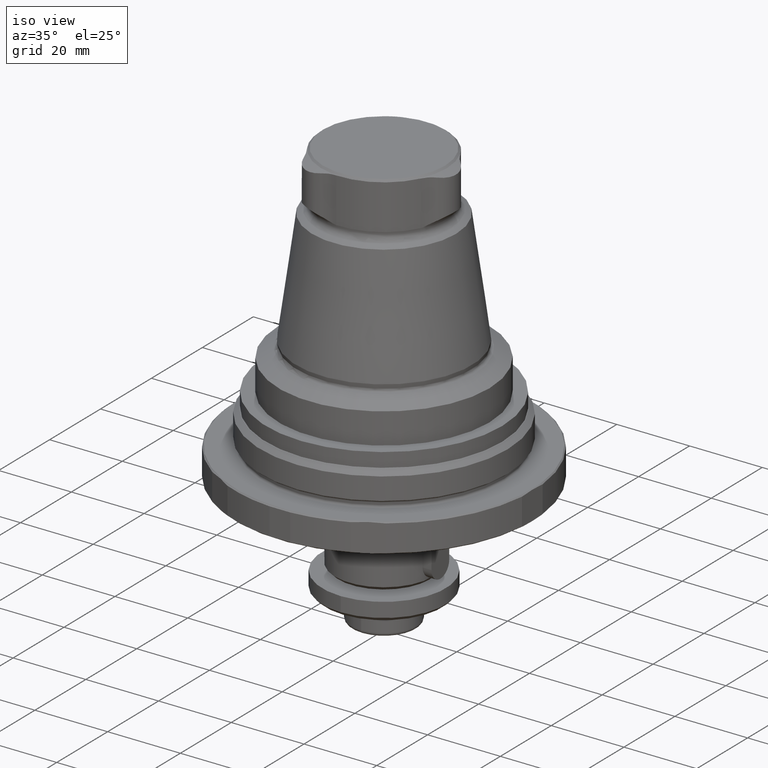
[diagram: clean part render]
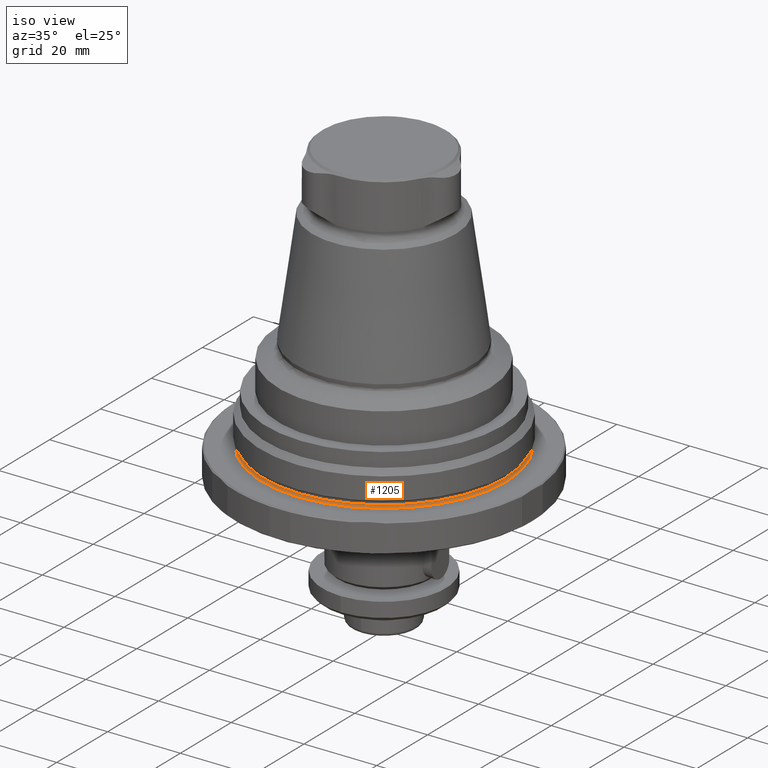
[diagram: same view with one face highlighted and labeled with its STEP entity id]
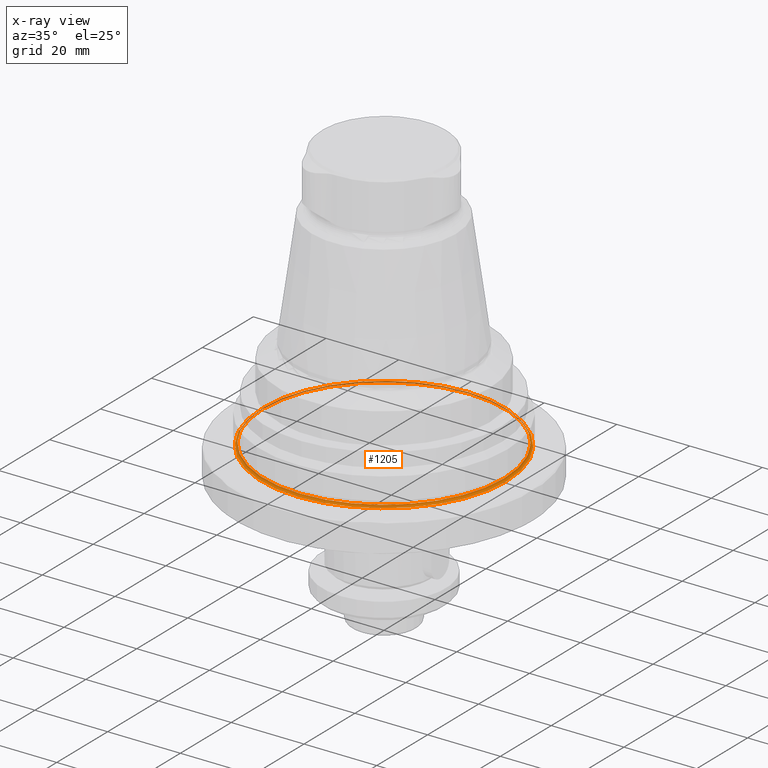
[diagram: x-ray of the same camera — body ghosted, the highlighted face saturated]
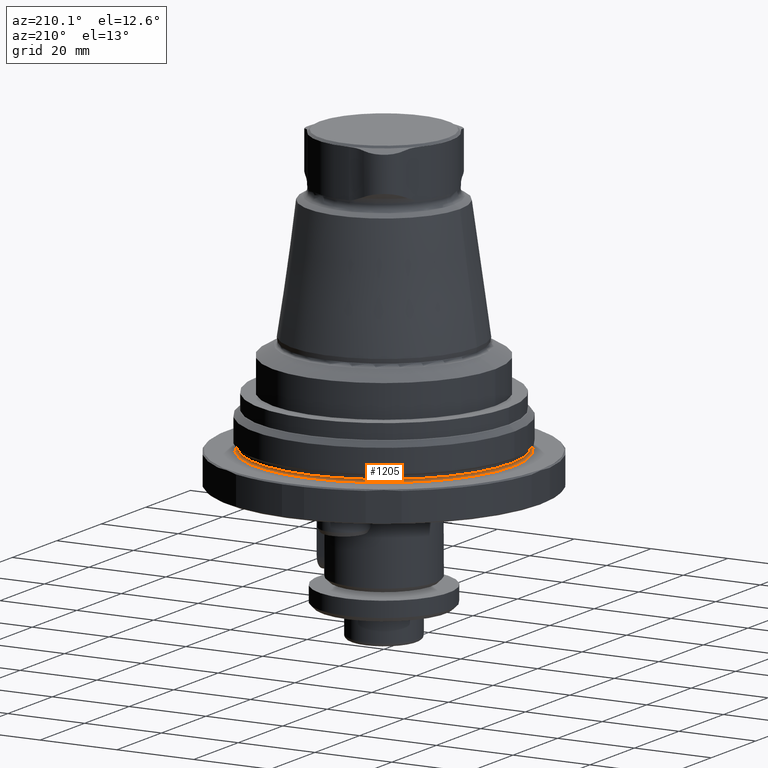
[diagram: same view with one face highlighted and labeled with its STEP entity id]
A machine part, iso view. The second image highlights one B-rep face of the part: STEP entity #1205.
The next image is the same camera in x-ray: the body ghosted, the highlighted face saturated — about 24% of this face is hidden behind the body in this view.
A second angle (auxiliary view) of the same face is appended — the face is thin or edge-on in the first view.
In plain terms, the highlighted toroidal blend (fillet) surface has major radius 33.65 mm and minor (blend) radius 0.6 mm.
Its self-contained STEP definition (entity closure, byte-faithful):
#338=ORIENTED_EDGE('',*,*,#614,.F.);
#339=ORIENTED_EDGE('',*,*,#612,.T.);
#612=EDGE_CURVE('',#763,#763,#871,.T.);
#614=EDGE_CURVE('',#765,#765,#873,.T.);
#763=VERTEX_POINT('',#1941);
#765=VERTEX_POINT('',#1946);
#871=CIRCLE('',#1332,33.05);
#873=CIRCLE('',#1335,33.65);
#968=EDGE_LOOP('',(#338));
#969=EDGE_LOOP('',(#339));
#1093=FACE_BOUND('',#968,.T.);
#1094=FACE_BOUND('',#969,.T.);
#1167=TOROIDAL_SURFACE('',#1334,33.65,0.6);
#1205=ADVANCED_FACE('',(#1093,#1094),#1167,.F.);
#1332=AXIS2_PLACEMENT_3D('',#1940,#1569,#1570);
#1334=AXIS2_PLACEMENT_3D('',#1944,#1573,#1574);
#1335=AXIS2_PLACEMENT_3D('',#1945,#1575,#1576);
#1569=DIRECTION('',(2.37516272644386E-69,1.04225259501902E-17,-1.));
#1570=DIRECTION('',(-1.,0.,0.));
#1573=DIRECTION('',(2.37516272644386E-69,1.04225259501902E-17,-1.));
#1574=DIRECTION('',(-1.,0.,0.));
#1575=DIRECTION('',(2.37516272644386E-69,1.04225259501902E-17,-1.));
#1576=DIRECTION('',(-1.,0.,0.));
#1940=CARTESIAN_POINT('',(7.88665112559661E-15,9.38027335517118E-17,-0.400000000000001));
#1941=CARTESIAN_POINT('',(-33.05,9.38027335517118E-17,-0.400000000000001));
#1944=CARTESIAN_POINT('',(7.88665112559661E-15,9.38027335517118E-17,-0.400000000000001));
#1945=CARTESIAN_POINT('',(7.88665112559661E-15,1.00056249121826E-16,-1.));
#1946=CARTESIAN_POINT('',(-33.65,1.00056249121826E-16,-1.));